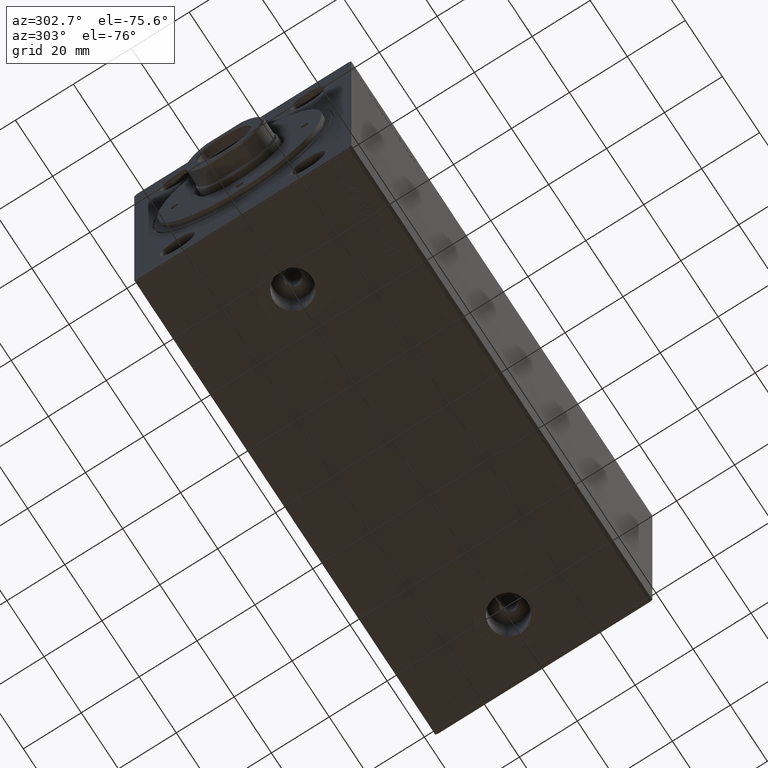
[diagram: clean part render]
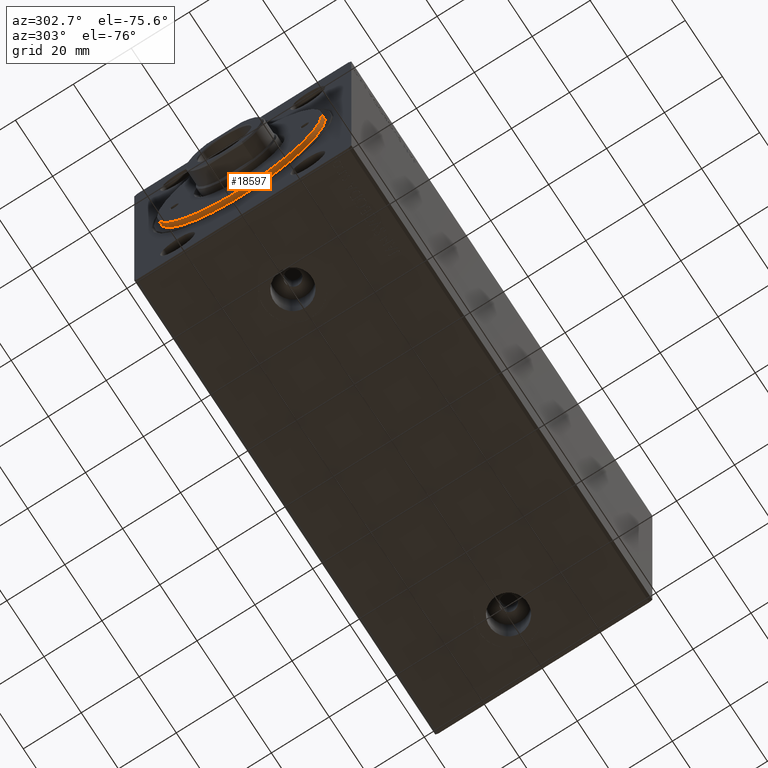
[diagram: same view with one face highlighted and labeled with its STEP entity id]
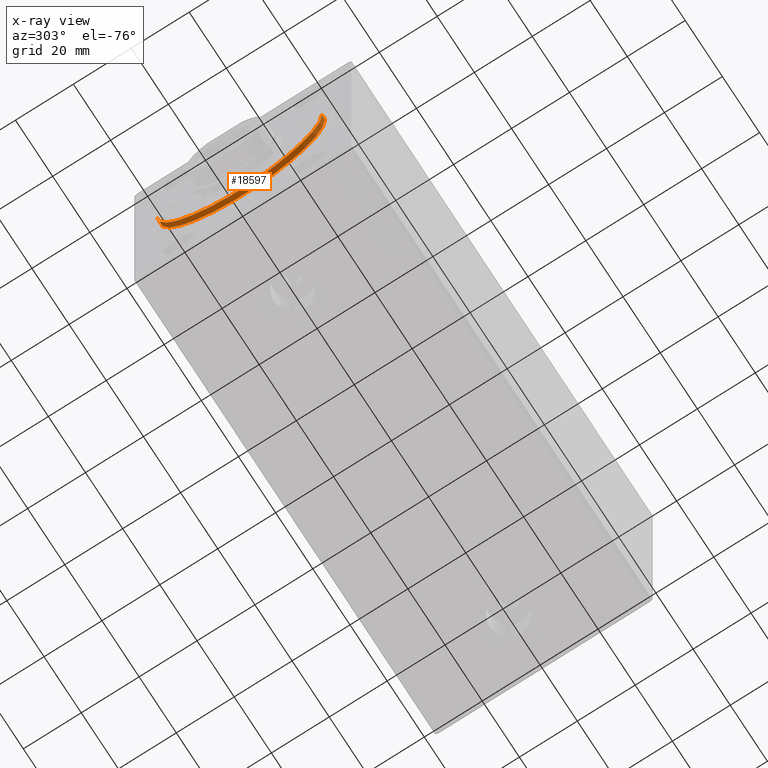
[diagram: x-ray of the same camera — body ghosted, the highlighted face saturated]
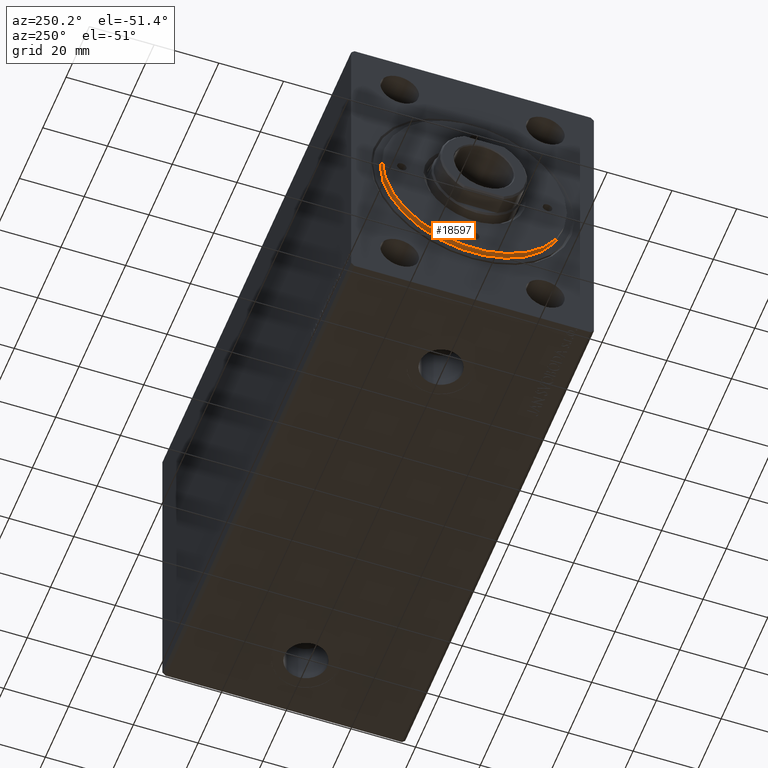
[diagram: same view with one face highlighted and labeled with its STEP entity id]
A machine part, auxiliary view. The second image highlights one B-rep face of the part: STEP entity #18597.
The next image is the same camera in x-ray: the body ghosted, the highlighted face saturated — about 0% of this face is hidden behind the body in this view.
A second angle (auxiliary view) of the same face is appended — the face is thin or edge-on in the first view.
In plain terms, the highlighted cylindrical surface (partial cylindrical patch) has radius 28.5 mm, axis along (1, -0, 0).
Its self-contained STEP definition (entity closure, byte-faithful):
#337 = ORIENTED_EDGE ( 'NONE', *, *, #7665, .F. ) ;
#538 = CARTESIAN_POINT ( 'NONE',  ( 28.50000000000000000, 3.490243377569956456E-15, 9.999999999999998224 ) ) ;
#720 = CARTESIAN_POINT ( 'NONE',  ( 0.000000000000000000, 0.000000000000000000, 9.999999999999998224 ) ) ;
#1135 = EDGE_CURVE ( 'NONE', #1881, #36078, #43777, .T. ) ;
#1150 = DIRECTION ( 'NONE',  ( -0.000000000000000000, -0.000000000000000000, -1.000000000000000000 ) ) ;
#1881 = VERTEX_POINT ( 'NONE', #538 ) ;
#2889 = CARTESIAN_POINT ( 'NONE',  ( -28.50000000000000000, 0.000000000000000000, 9.999999999999998224 ) ) ;
#3837 = CYLINDRICAL_SURFACE ( 'NONE', #37715, 28.50000000000000000 ) ;
#5061 = CARTESIAN_POINT ( 'NONE',  ( 0.000000000000000000, 0.000000000000000000, 8.199999999999999289 ) ) ;
#6119 = CIRCLE ( 'NONE', #13224, 28.50000000000000000 ) ;
#7665 = EDGE_CURVE ( 'NONE', #36078, #9433, #39045, .T. ) ;
#8050 = DIRECTION ( 'NONE',  ( -1.000000000000000000, 0.000000000000000000, 0.000000000000000000 ) ) ;
#9296 = DIRECTION ( 'NONE',  ( 0.000000000000000000, 0.000000000000000000, 1.000000000000000000 ) ) ;
#9433 = VERTEX_POINT ( 'NONE', #40873 ) ;
#13224 = AXIS2_PLACEMENT_3D ( 'NONE', #5061, #9296, #26187 ) ;
#14693 = ORIENTED_EDGE ( 'NONE', *, *, #33607, .T. ) ;
#16224 = DIRECTION ( 'NONE',  ( -0.000000000000000000, -0.000000000000000000, -1.000000000000000000 ) ) ;
#17239 = ORIENTED_EDGE ( 'NONE', *, *, #35393, .T. ) ;
#18597 = ADVANCED_FACE ( 'NONE', ( #34310 ), #3837, .T. ) ;
#18782 = CARTESIAN_POINT ( 'NONE',  ( 28.50000000000000000, 3.490243377569956456E-15, 8.199999999999999289 ) ) ;
#21044 = AXIS2_PLACEMENT_3D ( 'NONE', #23129, #32705, #29821 ) ;
#22471 = VERTEX_POINT ( 'NONE', #18782 ) ;
#23129 = CARTESIAN_POINT ( 'NONE',  ( 0.000000000000000000, 0.000000000000000000, 9.999999999999998224 ) ) ;
#26187 = DIRECTION ( 'NONE',  ( 1.000000000000000000, 0.000000000000000000, 0.000000000000000000 ) ) ;
#27168 = ORIENTED_EDGE ( 'NONE', *, *, #1135, .F. ) ;
#28182 = VECTOR ( 'NONE', #31477, 1000.000000000000000 ) ;
#29798 = CARTESIAN_POINT ( 'NONE',  ( 28.50000000000000000, 3.490243377569956456E-15, 9.999999999999998224 ) ) ;
#29821 = DIRECTION ( 'NONE',  ( 1.000000000000000000, 0.000000000000000000, 0.000000000000000000 ) ) ;
#31477 = DIRECTION ( 'NONE',  ( -0.000000000000000000, -0.000000000000000000, -1.000000000000000000 ) ) ;
#31658 = VECTOR ( 'NONE', #16224, 1000.000000000000000 ) ;
#32237 = LINE ( 'NONE', #29798, #31658 ) ;
#32705 = DIRECTION ( 'NONE',  ( 0.000000000000000000, 0.000000000000000000, 1.000000000000000000 ) ) ;
#33607 = EDGE_CURVE ( 'NONE', #1881, #22471, #32237, .T. ) ;
#34310 = FACE_OUTER_BOUND ( 'NONE', #39915, .T. ) ;
#34821 = CARTESIAN_POINT ( 'NONE',  ( -28.50000000000000000, 0.000000000000000000, 9.999999999999998224 ) ) ;
#35393 = EDGE_CURVE ( 'NONE', #22471, #9433, #6119, .T. ) ;
#36078 = VERTEX_POINT ( 'NONE', #2889 ) ;
#37715 = AXIS2_PLACEMENT_3D ( 'NONE', #720, #1150, #8050 ) ;
#39045 = LINE ( 'NONE', #34821, #28182 ) ;
#39915 = EDGE_LOOP ( 'NONE', ( #27168, #14693, #17239, #337 ) ) ;
#40873 = CARTESIAN_POINT ( 'NONE',  ( -28.50000000000000000, 0.000000000000000000, 8.199999999999999289 ) ) ;
#43777 = CIRCLE ( 'NONE', #21044, 28.50000000000000000 ) ;